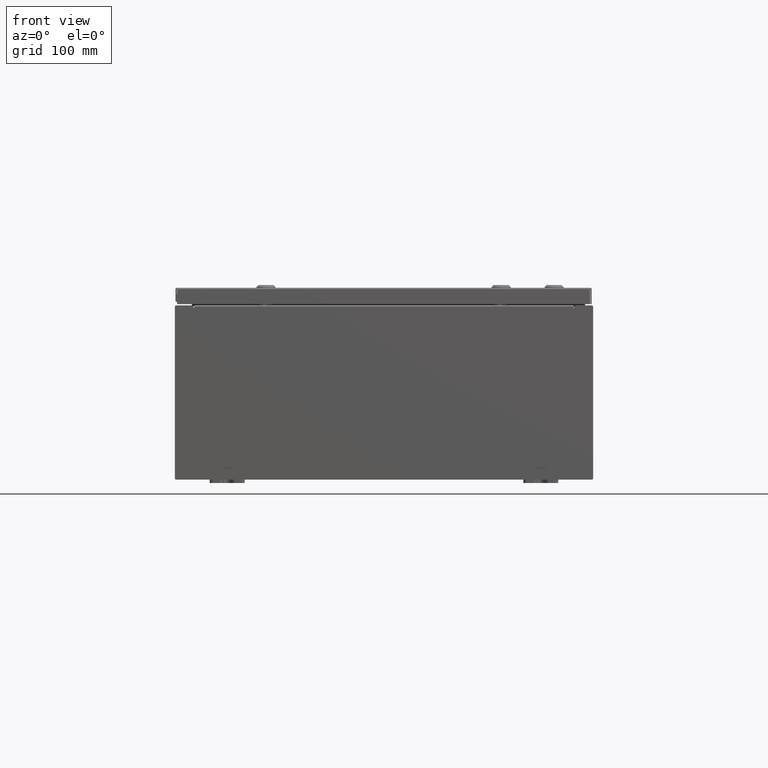
[diagram: clean part render]
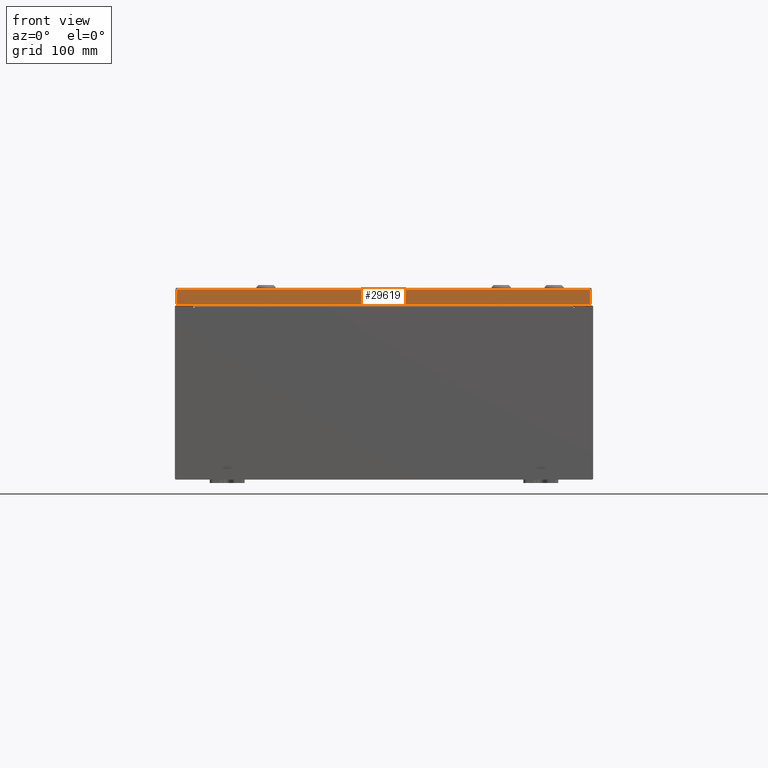
[diagram: same view with one face highlighted and labeled with its STEP entity id]
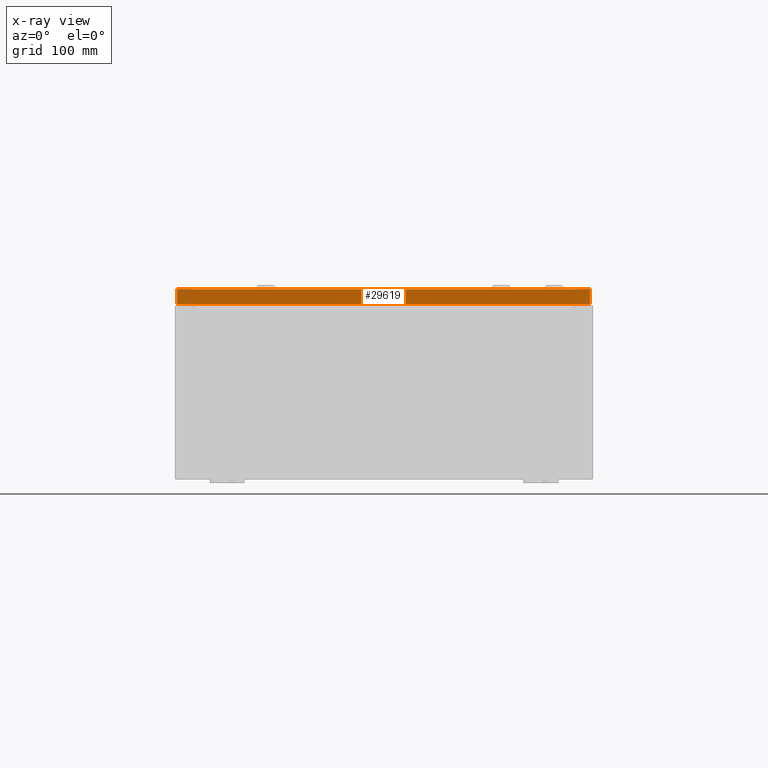
[diagram: x-ray of the same camera — body ghosted, the highlighted face saturated]
A machine part, front view. The second image highlights one B-rep face of the part: STEP entity #29619.
The next image is the same camera in x-ray: the body ghosted, the highlighted face saturated — about 0% of this face is hidden behind the body in this view.
In plain terms, the highlighted planar face has unit normal (-0, 1, -0).
Its self-contained STEP definition (entity closure, byte-faithful):
#1252 = DIRECTION ( 'NONE',  ( 0.0000000000000000000, 2.532419924601866100E-015, 1.000000000000000000 ) ) ;
#1804 = LINE ( 'NONE', #28589, #54464 ) ;
#2728 = ORIENTED_EDGE ( 'NONE', *, *, #52363, .F. ) ;
#3062 = VERTEX_POINT ( 'NONE', #48764 ) ;
#13366 = ORIENTED_EDGE ( 'NONE', *, *, #37757, .T. ) ;
#14134 = DIRECTION ( 'NONE',  ( 1.000000000000000000, 3.187436615352006600E-031, -7.980458346197363700E-046 ) ) ;
#14184 = DIRECTION ( 'NONE',  ( 0.0000000000000000000, -2.532419924601866100E-015, -1.000000000000000000 ) ) ;
#14668 = CARTESIAN_POINT ( 'NONE',  ( 11.84865786437626900, -14.93749999999999500, -0.07469999999999980800 ) ) ;
#15383 = LINE ( 'NONE', #26489, #30043 ) ;
#18163 = CARTESIAN_POINT ( 'NONE',  ( 11.84865786437626800, -14.93749999999999500, -0.08770000000000008300 ) ) ;
#19141 = CARTESIAN_POINT ( 'NONE',  ( 4.761233444182058100E-030, -14.93749999999999500, 3.808883627975194400E-014 ) ) ;
#23801 = ORIENTED_EDGE ( 'NONE', *, *, #36518, .F. ) ;
#25295 = FACE_OUTER_BOUND ( 'NONE', #31228, .T. ) ;
#26489 = CARTESIAN_POINT ( 'NONE',  ( 11.93750000000000000, -14.93749999999999800, -0.9376999999999997600 ) ) ;
#28589 = CARTESIAN_POINT ( 'NONE',  ( 11.93750000000000000, -14.93749999999999500, -0.08770000000000008300 ) ) ;
#29275 = ORIENTED_EDGE ( 'NONE', *, *, #38986, .F. ) ;
#29619 = ADVANCED_FACE ( 'NONE', ( #25295 ), #43974, .F. ) ;
#30043 = VECTOR ( 'NONE', #56077, 39.37007874015748100 ) ;
#31228 = EDGE_LOOP ( 'NONE', ( #2728, #13366, #29275, #23801 ) ) ;
#34870 = VERTEX_POINT ( 'NONE', #18163 ) ;
#35592 = LINE ( 'NONE', #14668, #45650 ) ;
#35652 = VERTEX_POINT ( 'NONE', #57968 ) ;
#36518 = EDGE_CURVE ( 'NONE', #34870, #35652, #35592, .T. ) ;
#37757 = EDGE_CURVE ( 'NONE', #3062, #44138, #49429, .T. ) ;
#37844 = VECTOR ( 'NONE', #14184, 39.37007874015748100 ) ;
#38986 = EDGE_CURVE ( 'NONE', #35652, #44138, #15383, .T. ) ;
#43974 = PLANE ( 'NONE',  #61691 ) ;
#44138 = VERTEX_POINT ( 'NONE', #61400 ) ;
#45650 = VECTOR ( 'NONE', #49196, 39.37007874015748100 ) ;
#48764 = CARTESIAN_POINT ( 'NONE',  ( -11.84865786437626800, -14.93749999999999500, -0.08770000000000008300 ) ) ;
#48929 = DIRECTION ( 'NONE',  ( -3.187436615352006200E-031, 1.000000000000000000, -2.532419924601866100E-015 ) ) ;
#49196 = DIRECTION ( 'NONE',  ( -0.0000000000000000000, -2.532419924601866100E-015, -1.000000000000000000 ) ) ;
#49429 = LINE ( 'NONE', #58909, #37844 ) ;
#52363 = EDGE_CURVE ( 'NONE', #3062, #34870, #1804, .T. ) ;
#54464 = VECTOR ( 'NONE', #14134, 39.37007874015748100 ) ;
#56077 = DIRECTION ( 'NONE',  ( -1.000000000000000000, 4.379057701015054300E-047, 1.258652478756310100E-016 ) ) ;
#57968 = CARTESIAN_POINT ( 'NONE',  ( 11.84865786437626900, -14.93749999999999800, -0.9376999999999997600 ) ) ;
#58909 = CARTESIAN_POINT ( 'NONE',  ( -11.84865786437626900, -14.93749999999999500, 3.808883627975194400E-014 ) ) ;
#61400 = CARTESIAN_POINT ( 'NONE',  ( -11.84865786437626800, -14.93749999999999800, -0.9376999999999967600 ) ) ;
#61691 = AXIS2_PLACEMENT_3D ( 'NONE', #19141, #48929, #1252 ) ;